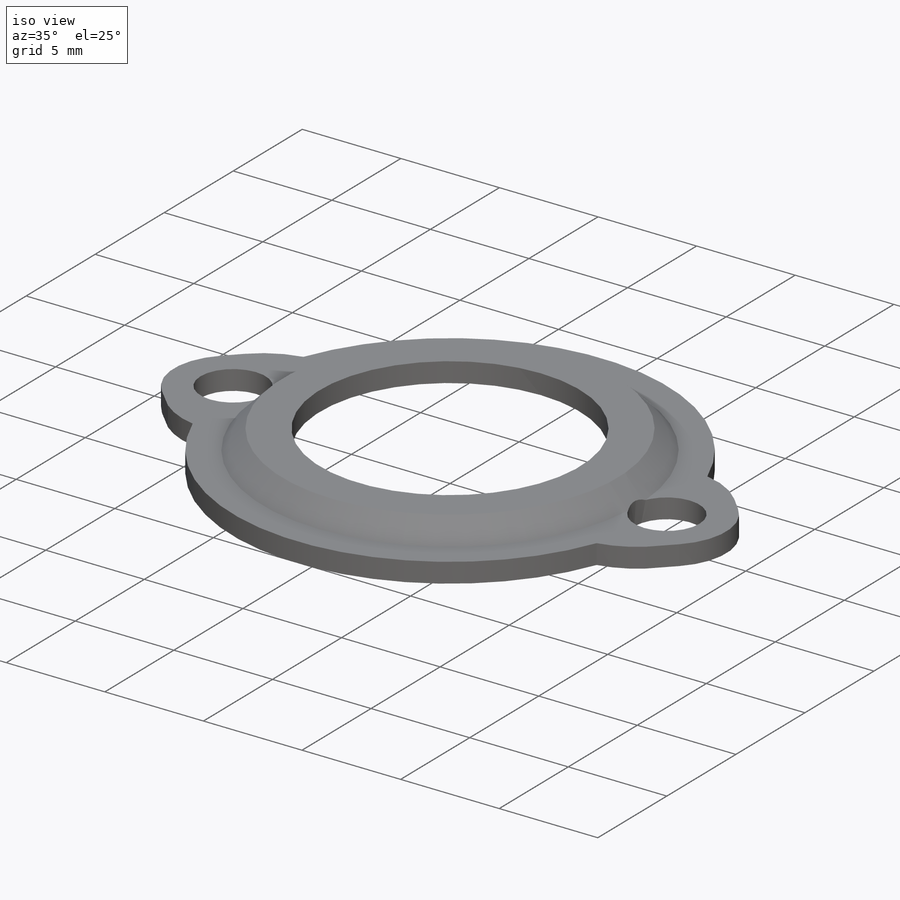
[diagram: iso view]
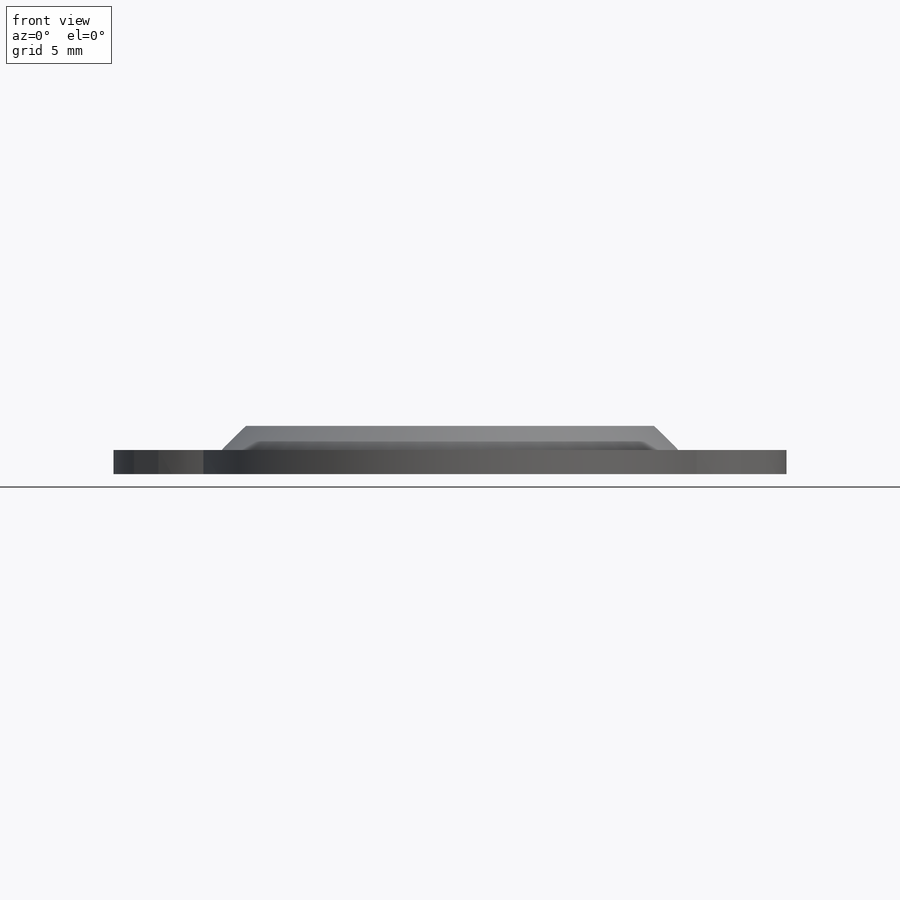
[diagram: front view]
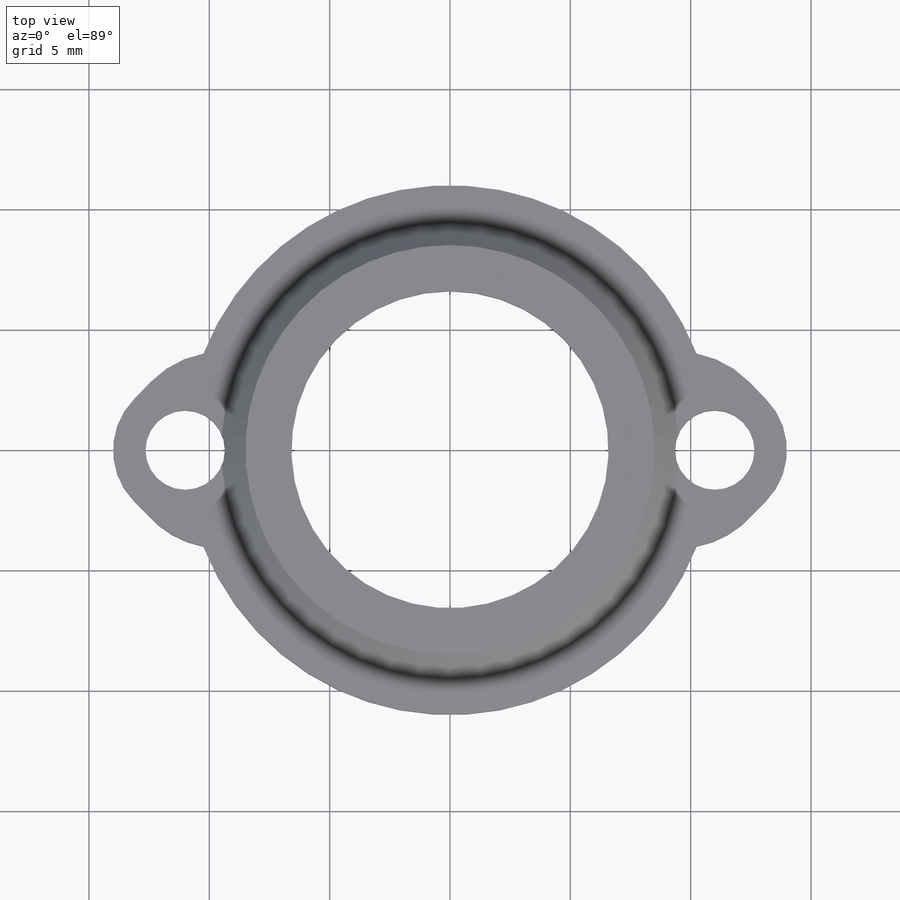
[diagram: top view]
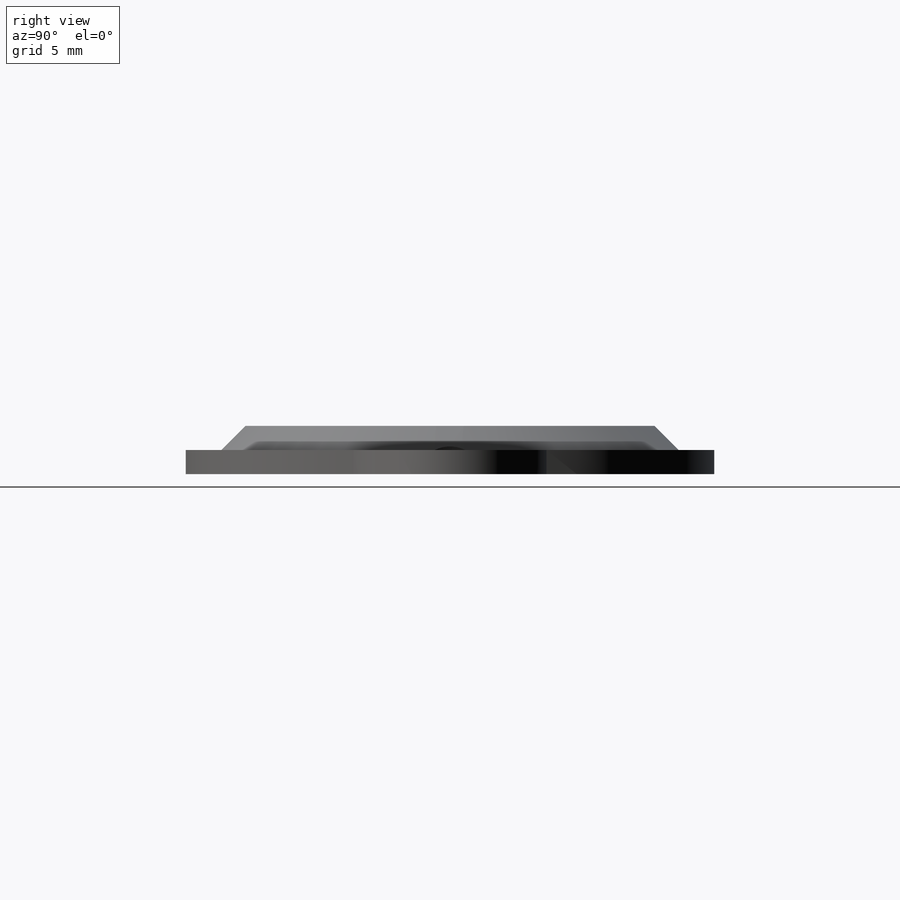
[diagram: right view]
SOLIDWORKS PART (.sldprt)
format: sldprt  version: not decoded by parser v0  size: 513,024 bytes
history: native  units: mm
features: sketch x5, thread x2, material x1, revolve x1, extrude x1, hole x1, cut_revolve x1, chamfer x1 (+15 scaffold rows collapsed)
feature tree (28):
  scaffold x15  (default folders/planes/origin — collapsed)
  material  "AISI 1020"
  sketch  "Sketch2"  dims[c1.D1=1.0mm c1.D2=1.0mm c1.D3=3.0mm c1.D4=1.5mm c1.D5=11.0mm c1.D6=3.0mm c2.D6=45.0deg c2.D3=1.5mm c2.D7=1.0mm c2.D5=11.0mm]
  revolve  "Revolve1"  Angle=360deg
  sketch  "Sketch3"  dims[c1.D1=6.0mm c1.D2=~12.423985mm c2.D2=45.0deg]
  extrude  "Extrude1"  Depth=1mm
  hole  "M4x0.7 Tapped Hole1"  Diameter=3.3mm Depth=10.3mm
  sketch  "3DSketch1"
  sketch  "Sketch5"  dims[hole-wizard template sketch: 50 standard entries collapsed; hole parameters above]
  thread  "Hole Thread3"  Diameter=13.3mm  [1 undecoded]
  thread  "Hole Thread4"  Diameter=13.3mm  [1 undecoded]
  sketch  "Sketch9"
  cut_revolve  "Cut-Revolve1"  Angle=360deg
  chamfer  "Chamfer1"  Distance=0.25mm Angle=45deg
decode coverage: 10 of 12 modeling features carry decoded parameters
note: ~ marks probable driven/reference dimensions
note: 2 parameter values undecoded
note: suppression state not decoded; provenance and decode notes live in map.json
